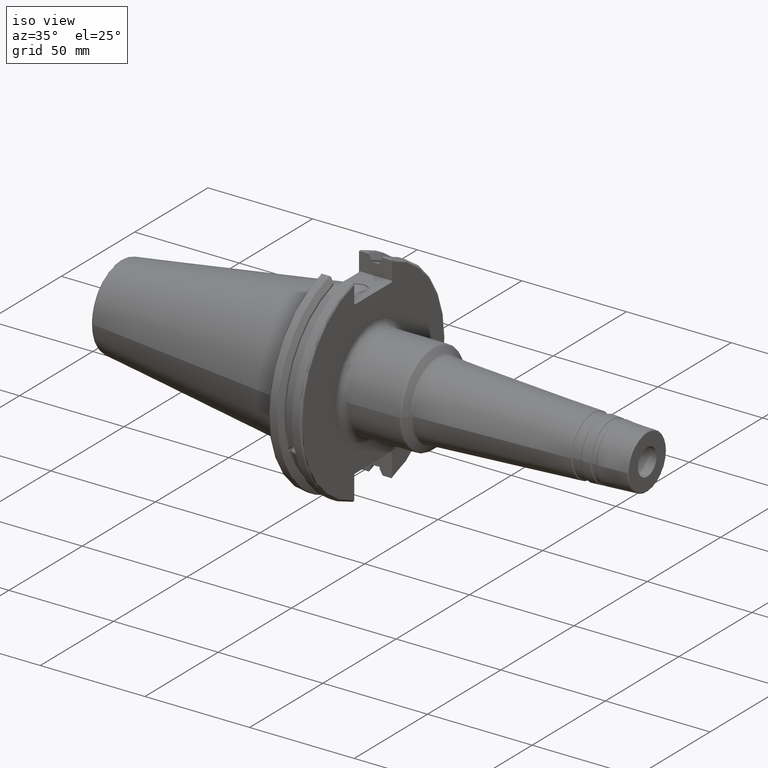
[diagram: clean part render]
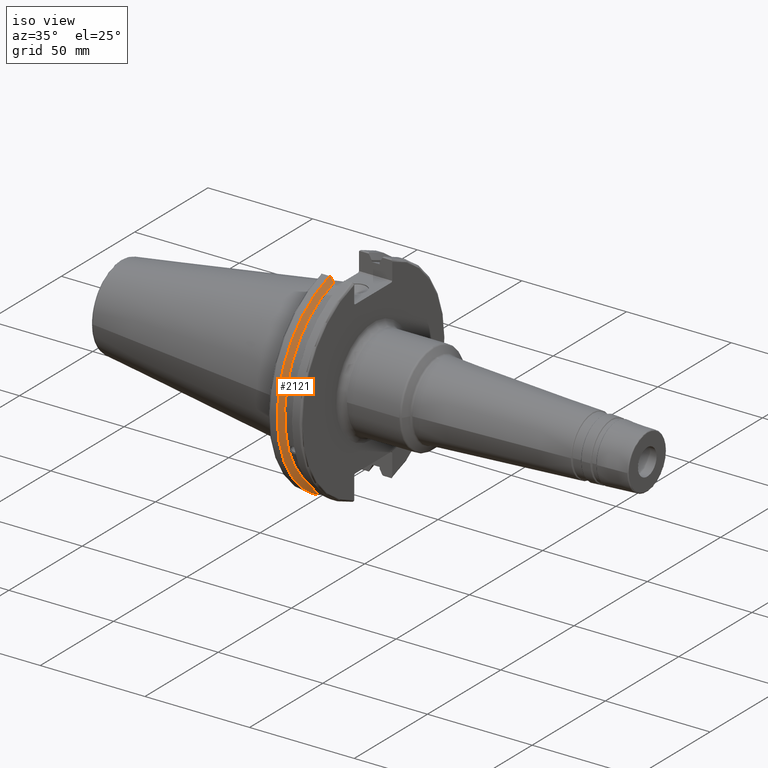
[diagram: same view with one face highlighted and labeled with its STEP entity id]
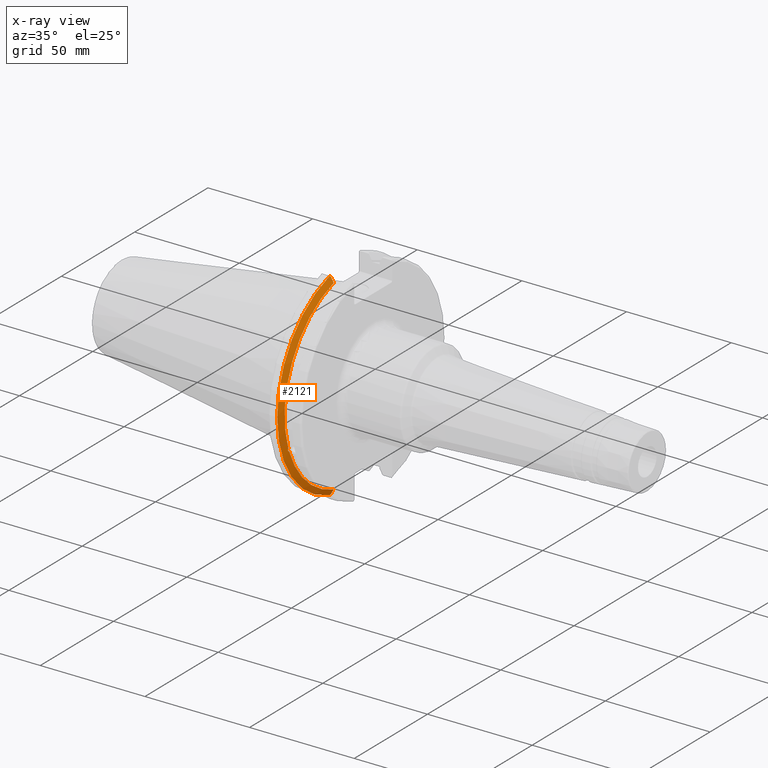
[diagram: x-ray of the same camera — body ghosted, the highlighted face saturated]
A machine part, iso view. The second image highlights one B-rep face of the part: STEP entity #2121.
The next image is the same camera in x-ray: the body ghosted, the highlighted face saturated — about 0% of this face is hidden behind the body in this view.
In plain terms, the highlighted conical surface has half-angle 60 deg.
Its self-contained STEP definition (entity closure, byte-faithful):
#25=(
BOUNDED_CURVE()
B_SPLINE_CURVE(2,(#4033,#4034,#4035),.UNSPECIFIED.,.F.,.F.)
B_SPLINE_CURVE_WITH_KNOTS((3,3),(0.,0.275823910674601),.UNSPECIFIED.)
CURVE()
GEOMETRIC_REPRESENTATION_ITEM()
RATIONAL_B_SPLINE_CURVE((1.,1.00038235573593,1.00012873636487))
REPRESENTATION_ITEM('')
);
#26=(
BOUNDED_CURVE()
B_SPLINE_CURVE(2,(#4045,#4046,#4047),.UNSPECIFIED.,.F.,.F.)
B_SPLINE_CURVE_WITH_KNOTS((3,3),(0.0558332664507492,0.331657177124507),
 .UNSPECIFIED.)
CURVE()
GEOMETRIC_REPRESENTATION_ITEM()
RATIONAL_B_SPLINE_CURVE((1.00012873636807,1.00038235574544,1.))
REPRESENTATION_ITEM('')
);
#27=(
BOUNDED_CURVE()
B_SPLINE_CURVE(2,(#4080,#4081,#4082),.UNSPECIFIED.,.F.,.F.)
B_SPLINE_CURVE_WITH_KNOTS((3,3),(0.,0.0648240472897372),.UNSPECIFIED.)
CURVE()
GEOMETRIC_REPRESENTATION_ITEM()
RATIONAL_B_SPLINE_CURVE((1.,1.00011477674836,1.00019140645948))
REPRESENTATION_ITEM('')
);
#28=(
BOUNDED_CURVE()
B_SPLINE_CURVE(2,(#4088,#4089,#4090),.UNSPECIFIED.,.F.,.F.)
B_SPLINE_CURVE_WITH_KNOTS((3,3),(0.325260944932348,0.390084992222201),
 .UNSPECIFIED.)
CURVE()
GEOMETRIC_REPRESENTATION_ITEM()
RATIONAL_B_SPLINE_CURVE((1.00019140645916,1.00011477674817,1.))
REPRESENTATION_ITEM('')
);
#43=B_SPLINE_CURVE_WITH_KNOTS('',3,(#3536,#3537,#3538,#3539,#3540,#3541,
#3542,#3543,#3544,#3545,#3546,#3547,#3548,#3549),.UNSPECIFIED.,.F.,.F.,
(4,2,2,2,2,2,4),(0.426712868358719,0.441644498666906,0.48031331322313,0.518982127779354,
0.557650942335578,0.596319756891801,0.611251387199988),.UNSPECIFIED.);
#92=CONICAL_SURFACE('',#2416,47.8172386482472,1.0471975511966);
#479=FACE_OUTER_BOUND('',#603,.T.);
#603=EDGE_LOOP('',(#1983,#1984,#1985,#1986,#1987,#1988,#1989,#1990));
#716=CIRCLE('',#2297,46.4219772964944);
#752=CIRCLE('',#2362,49.2125);
#776=CIRCLE('',#2417,46.4219772964944);
#887=VERTEX_POINT('',#3533);
#888=VERTEX_POINT('',#3535);
#908=VERTEX_POINT('',#3631);
#980=VERTEX_POINT('',#4030);
#981=VERTEX_POINT('',#4032);
#984=VERTEX_POINT('',#4044);
#988=VERTEX_POINT('',#4078);
#989=VERTEX_POINT('',#4084);
#1153=EDGE_CURVE('',#888,#887,#43,.T.);
#1179=EDGE_CURVE('',#888,#908,#716,.T.);
#1275=EDGE_CURVE('',#981,#980,#25,.T.);
#1281=EDGE_CURVE('',#984,#908,#26,.T.);
#1289=EDGE_CURVE('',#988,#980,#27,.T.);
#1291=EDGE_CURVE('',#988,#989,#752,.T.);
#1292=EDGE_CURVE('',#984,#989,#28,.T.);
#1342=EDGE_CURVE('',#981,#887,#776,.T.);
#1983=ORIENTED_EDGE('',*,*,#1153,.T.);
#1984=ORIENTED_EDGE('',*,*,#1342,.F.);
#1985=ORIENTED_EDGE('',*,*,#1275,.T.);
#1986=ORIENTED_EDGE('',*,*,#1289,.F.);
#1987=ORIENTED_EDGE('',*,*,#1291,.T.);
#1988=ORIENTED_EDGE('',*,*,#1292,.F.);
#1989=ORIENTED_EDGE('',*,*,#1281,.T.);
#1990=ORIENTED_EDGE('',*,*,#1179,.F.);
#2121=ADVANCED_FACE('',(#479),#92,.T.);
#2297=AXIS2_PLACEMENT_3D('',#3632,#2765,#2766);
#2362=AXIS2_PLACEMENT_3D('',#4086,#2939,#2940);
#2416=AXIS2_PLACEMENT_3D('',#4218,#3068,#3069);
#2417=AXIS2_PLACEMENT_3D('',#4219,#3070,#3071);
#2765=DIRECTION('center_axis',(1.,0.,0.));
#2766=DIRECTION('ref_axis',(0.,0.,-1.));
#2939=DIRECTION('center_axis',(1.,0.,0.));
#2940=DIRECTION('ref_axis',(0.,0.,-1.));
#3068=DIRECTION('center_axis',(-1.,0.,0.));
#3069=DIRECTION('ref_axis',(0.,-1.,-1.22464679914735E-16));
#3070=DIRECTION('center_axis',(1.,0.,0.));
#3071=DIRECTION('ref_axis',(0.,0.,-1.));
#3533=CARTESIAN_POINT('',(9.2191,-43.9096390749305,-15.0646464421033));
#3535=CARTESIAN_POINT('',(9.2191,-43.3201030900029,-16.684383248648));
#3536=CARTESIAN_POINT('Ctrl Pts',(9.21910000000001,-43.3201030900029,-16.6843832486479));
#3537=CARTESIAN_POINT('Ctrl Pts',(9.20211843903392,-43.3613106941341,-16.6592273018006));
#3538=CARTESIAN_POINT('Ctrl Pts',(9.18608675403322,-43.4012416983557,-16.6326763251437));
#3539=CARTESIAN_POINT('Ctrl Pts',(9.13238673845037,-43.5391037343221,-16.5325130832406));
#3540=CARTESIAN_POINT('Ctrl Pts',(9.09621610663556,-43.6406982153491,-16.441180795372));
#3541=CARTESIAN_POINT('Ctrl Pts',(9.04690868251975,-43.8110833825827,-16.2291323464527));
#3542=CARTESIAN_POINT('Ctrl Pts',(9.0341,-43.8794096049168,-16.10796730316));
#3543=CARTESIAN_POINT('Ctrl Pts',(9.0341,-43.9675796948952,-15.8657219718732));
#3544=CARTESIAN_POINT('Ctrl Pts',(9.04690868251975,-43.9931221605126,-15.7289849146254));
#3545=CARTESIAN_POINT('Ctrl Pts',(9.09621610663556,-43.9989016655819,-15.4570249042867));
#3546=CARTESIAN_POINT('Ctrl Pts',(9.13238673845037,-43.9797830409458,-15.3217566390708));
#3547=CARTESIAN_POINT('Ctrl Pts',(9.18608675403322,-43.9385582852181,-15.1564111356409));
#3548=CARTESIAN_POINT('Ctrl Pts',(9.20211843903392,-43.9250360001461,-15.1104047527575));
#3549=CARTESIAN_POINT('Ctrl Pts',(9.2191,-43.9096390749305,-15.0646464421033));
#3631=CARTESIAN_POINT('',(9.2191,-12.95,-44.5791147973604));
#3632=CARTESIAN_POINT('Origin',(9.2191,0.,0.));
#4030=CARTESIAN_POINT('',(7.88638960562424,-12.95,46.9780755322918));
#4032=CARTESIAN_POINT('',(9.2191,-12.95,44.5791147973604));
#4033=CARTESIAN_POINT('Ctrl Pts',(9.2191,-12.95,44.5791147973604));
#4034=CARTESIAN_POINT('Ctrl Pts',(8.57020449055857,-12.95,45.7494966802148));
#4035=CARTESIAN_POINT('Ctrl Pts',(7.88638960562424,-12.95,46.9780755322918));
#4044=CARTESIAN_POINT('',(7.88638960562425,-12.95,-46.9780755322918));
#4045=CARTESIAN_POINT('Ctrl Pts',(7.88638960562425,-12.95,-46.9780755322918));
#4046=CARTESIAN_POINT('Ctrl Pts',(8.57020449054166,-12.95,-45.7494966802452));
#4047=CARTESIAN_POINT('Ctrl Pts',(9.2191,-12.95,-44.5791147973604));
#4078=CARTESIAN_POINT('',(7.60799096595127,-13.4317035994433,47.3440544806494));
#4080=CARTESIAN_POINT('Ctrl Pts',(7.60799096595126,-13.4317035994433,47.3440544806494));
#4081=CARTESIAN_POINT('Ctrl Pts',(7.7482689666382,-13.1896660169966,47.1601640966265));
#4082=CARTESIAN_POINT('Ctrl Pts',(7.88638960562424,-12.95,46.9780755322918));
#4084=CARTESIAN_POINT('',(7.60799096595127,-13.4317035994433,-47.3440544806494));
#4086=CARTESIAN_POINT('Origin',(7.60799096595127,0.,0.));
#4088=CARTESIAN_POINT('Ctrl Pts',(7.88638960562425,-12.95,-46.9780755322918));
#4089=CARTESIAN_POINT('Ctrl Pts',(7.74826896663813,-13.1896660169967,-47.1601640966265));
#4090=CARTESIAN_POINT('Ctrl Pts',(7.60799096595127,-13.4317035994434,-47.3440544806494));
#4218=CARTESIAN_POINT('Origin',(8.41354548297563,0.,0.));
#4219=CARTESIAN_POINT('Origin',(9.2191,0.,0.));